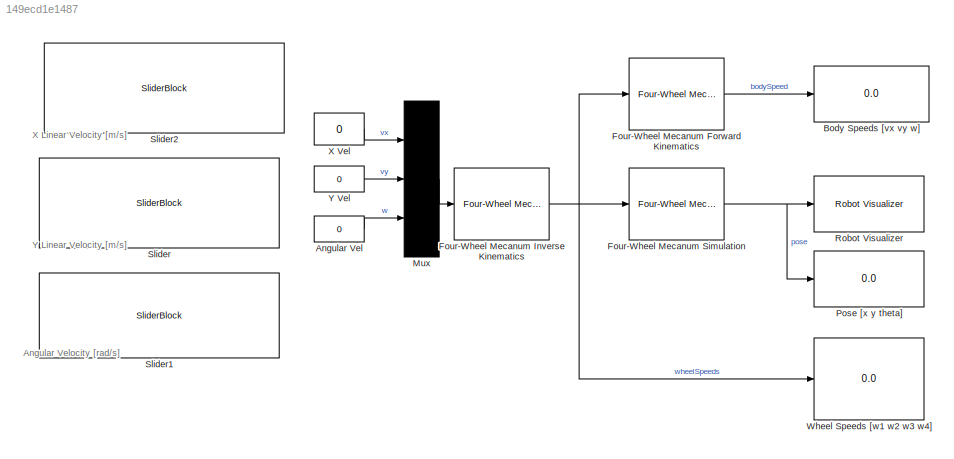
MODEL slx_149ecd1e1487
KIND model
CONFIG AbsTol = auto
CONFIG EnableMultiTasking = off
CONFIG FixedStep = auto
CONFIG MaxStep = auto
CONFIG MinStep = auto
CONFIG RelTol = 1e-3
CONFIG SampleTimeConstraint = Unconstrained
CONFIG Solver = VariableStepAuto
CONFIG SolverName = VariableStepAuto
CONFIG StartTime = 0.0
CONFIG StopTime = inf
BLOCK [Constant] Angular Vel
  Value = 0
BLOCK [Display] Body Speeds [vx vy w]
  Decimation = 1
  Ports = [1]
BLOCK [Reference] Four-Wheel Mecanum Forward Kinematics  REF=mobileRoboticsLib/Kinematic Models/Four-Wheel Mecanum/Four-Wheel Mecanum
Forward Kinematics
  Ports = [1, 1]
  SourceBlock = mobileRoboticsLib/Kinematic Models/Four-Wheel Mecanum/Four-Wheel Mecanum\nForward Kinematics
  SourceProductName = Mobile Robotics Simulation Library
  SourceType = Four-Wheel Mecanum Forward Kinematics
BLOCK [Reference] Four-Wheel Mecanum Inverse Kinematics  REF=mobileRoboticsLib/Kinematic Models/Four-Wheel Mecanum/Four-Wheel Mecanum
Inverse Kinematics
  Ports = [1, 1]
  SourceBlock = mobileRoboticsLib/Kinematic Models/Four-Wheel Mecanum/Four-Wheel Mecanum\nInverse Kinematics
  SourceProductName = Mobile Robotics Simulation Library
  SourceType = Four-Wheel Mecanum Inverse Kinematics
BLOCK [Reference] Four-Wheel Mecanum Simulation  REF=mobileRoboticsLib/Kinematic Models/Four-Wheel Mecanum/Four-Wheel Mecanum Simulation
  Ports = [1, 1]
  SourceBlock = mobileRoboticsLib/Kinematic Models/Four-Wheel Mecanum/Four-Wheel Mecanum Simulation
  SourceProductName = Mobile Robotics Simulation Library
  SourceType = Four-Wheel Mecanum Simulation
BLOCK [Mux] Mux
  DisplayOption = bar
  Inputs = 3
  Ports = [3, 1]
BLOCK [Display] Pose [x y theta]
  Decimation = 1
  Ports = [1]
BLOCK [Reference] Robot Visualizer  REF=mobileRoboticsLib/Environments/Robot Visualizer
  Ports = [1]
  Priority = 99
  SourceBlock = mobileRoboticsLib/Environments/Robot Visualizer
  SourceProductName = Ground Vehicles Library
  SourceType = Visualizer2D
BLOCK [SliderBlock] Slider
  ScaleMax = 1
  ScaleMin = -1
  TickInterval = 0.25
BLOCK [SliderBlock] Slider1
  ScaleMax = 1.5
  ScaleMin = -1.5
BLOCK [SliderBlock] Slider2
  ScaleMax = 1
  ScaleMin = -1
  TickInterval = 0.25
BLOCK [Display] Wheel Speeds [w1 w2 w3 w4]
  Decimation = 1
  Ports = [1]
BLOCK [Constant] X Vel
  Value = 0
BLOCK [Constant] Y Vel
  Value = 0
ANNOTATION (root): Angular Velocity [rad/s]
ANNOTATION (root): X Linear Velocity [m/s]
ANNOTATION (root): Y Linear Velocity [m/s]
LINE Angular Vel:1 -> Mux:3
LINE Four-Wheel Mecanum Forward Kinematics:1 -> Body Speeds [vx vy w]:1
NET Four-Wheel Mecanum Inverse Kinematics:1 -> Four-Wheel Mecanum Forward Kinematics:1, Four-Wheel Mecanum Simulation:1, Wheel Speeds [w1 w2 w3 w4]:1
NET Four-Wheel Mecanum Simulation:1 -> Pose [x y theta]:1, Robot Visualizer:1
LINE Mux:1 -> Four-Wheel Mecanum Inverse Kinematics:1
LINE X Vel:1 -> Mux:1
LINE Y Vel:1 -> Mux:2
note: NET lines group one-source signal fan-out (src -> all destinations, sorted); 1:1 wires keep LINE
